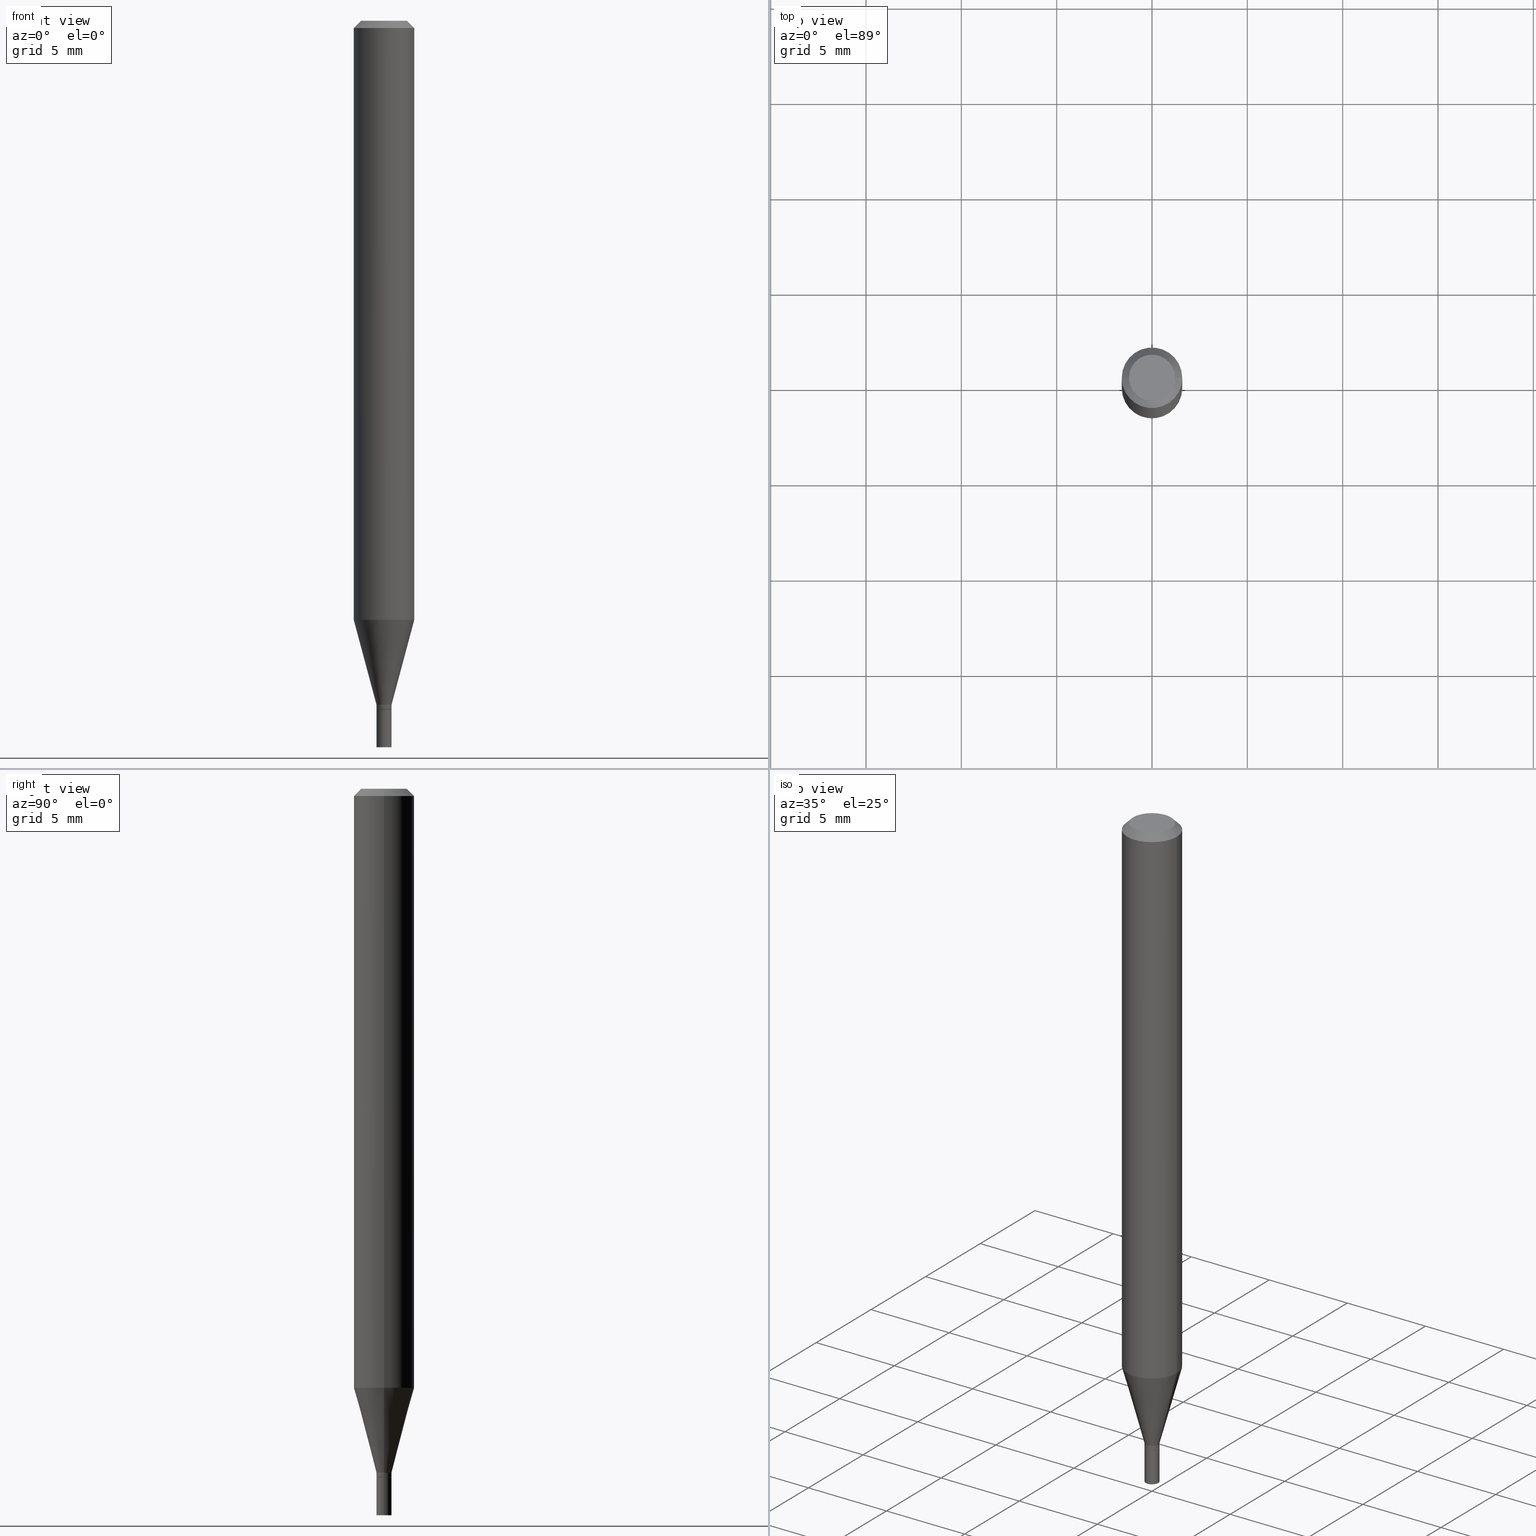
[diagram: canonical four-view strip — front | top / right | iso, engineering-drawing reading convention]
A machine part, canonical four-view strip (front | top / right | iso — engineering-drawing reading convention). The complete STEP part file that produces these views, byte-faithful:
ISO-10303-21;
HEADER;
FILE_DESCRIPTION (( 'STEP AP203' ),
    '1' );
FILE_NAME ('30503.STEP',
    '2024-03-13T16:12:55',
    ( '' ),
    ( '' ),
    'SwSTEP 2.0',
    'SolidWorks 2023',
    '' );
FILE_SCHEMA (( 'CONFIG_CONTROL_DESIGN' ));
ENDSEC;

DATA;
#1 = AXIS2_PLACEMENT_3D ( 'NONE', #374, #18, #332 ) ;
#2 = FACE_OUTER_BOUND ( 'NONE', #60, .T. ) ;
#3 = ORIENTED_EDGE ( 'NONE', *, *, #67, .T. ) ;
#4 = ADVANCED_FACE ( 'NONE', ( #202 ), #25, .T. ) ;
#5 = AXIS2_PLACEMENT_3D ( 'NONE', #333, #165, #416 ) ;
#6 = AXIS2_PLACEMENT_3D ( 'NONE', #185, #246, #406 ) ;
#7 = CARTESIAN_POINT ( 'NONE',  ( 0.01559999999999999928, -1.089342177719057547E-16, 7.606835770241659199E-31 ) ) ;
#8 = CC_DESIGN_PERSON_AND_ORGANIZATION_ASSIGNMENT ( #340, #381, ( #401 ) ) ;
#9 = ORIENTED_EDGE ( 'NONE', *, *, #210, .T. ) ;
#10 = DIRECTION ( 'NONE',  ( -0.7071067811865642261, 7.493145998870414114E-15, 0.7071067811865309194 ) ) ;
#11 = DIRECTION ( 'NONE',  ( 1.000000000000000000, -6.982962677686267499E-15, 0.000000000000000000 ) ) ;
#12 = CARTESIAN_POINT ( 'NONE',  ( 3.477456642395264859E-29, -4.964886463834953365E-15, -1.421999999999999931 ) ) ;
#13 = COORDINATED_UNIVERSAL_TIME_OFFSET ( 5, 0, .BEHIND. ) ;
#14 = CIRCLE ( 'NONE', #242, 0.01509999999999999884 ) ;
#15 = CARTESIAN_POINT ( 'NONE',  ( 3.668203209277705088E-31, -5.237222008264718399E-17, -0.01499999999999999944 ) ) ;
#16 = EDGE_CURVE ( 'NONE', #200, #220, #231, .T. ) ;
#17 = EDGE_LOOP ( 'NONE', ( #146, #59, #385, #160 ) ) ;
#18 = DIRECTION ( 'NONE',  ( -2.445468806185136597E-29, 3.491481338843145583E-15, 1.000000000000000000 ) ) ;
#19 = CARTESIAN_POINT ( 'NONE',  ( -0.06250000000000002776, -1.741520179571366031E-15, -0.01499999999999999944 ) ) ;
#20 = FACE_OUTER_BOUND ( 'NONE', #403, .T. ) ;
#21 = ORIENTED_EDGE ( 'NONE', *, *, #404, .F. ) ;
#22 = COORDINATED_UNIVERSAL_TIME_OFFSET ( 5, 0, .BEHIND. ) ;
#23 = FACE_OUTER_BOUND ( 'NONE', #206, .T. ) ;
#24 = DESIGN_CONTEXT ( 'detailed design', #444, 'design' ) ;
#25 = CONICAL_SURFACE ( 'NONE', #405, 0.01509999999999999884, 0.7853981633974718157 ) ;
#26 = VECTOR ( 'NONE', #10, 39.37007874015748143 ) ;
#27 = ADVANCED_BREP_SHAPE_REPRESENTATION ( '30503', ( #342, #32, #365 ), #43 ) ;
#28 = DIRECTION ( 'NONE',  ( -2.445468806185136597E-29, 3.491481338843145583E-15, 1.000000000000000000 ) ) ;
#29 = ORIENTED_EDGE ( 'NONE', *, *, #62, .T. ) ;
#30 = PERSON_AND_ORGANIZATION_ROLE ( 'creator' ) ;
#31 = FACE_OUTER_BOUND ( 'NONE', #199, .T. ) ;
#32 = MANIFOLD_SOLID_BREP ( 'Body-Move/Copy2[2]', #277 ) ;
#33 = APPLICATION_CONTEXT ( 'configuration controlled 3d designs of mechanical parts and assemblies' ) ;
#34 = CONICAL_SURFACE ( 'NONE', #398, 0.01559999999999992816, 0.2617993877991502405 ) ;
#35 = AXIS2_PLACEMENT_3D ( 'NONE', #306, #129, #51 ) ;
#36 = DIRECTION ( 'NONE',  ( 0.7071067811865642261, -2.468850131082431399E-15, 0.7071067811865309194 ) ) ;
#37 = AXIS2_PLACEMENT_3D ( 'NONE', #15, #159, #262 ) ;
#38 = DIRECTION ( 'NONE',  ( -1.000000000000000000, 6.982962677686265922E-15, -4.876176775795935793E-29 ) ) ;
#39 = EDGE_CURVE ( 'NONE', #263, #94, #58, .T. ) ;
#40 = LINE ( 'NONE', #7, #413 ) ;
#41 = ORIENTED_EDGE ( 'NONE', *, *, #196, .T. ) ;
#42 = DIRECTION ( 'NONE',  ( -0.2588190451025215166, 5.211531920934551042E-15, 0.9659258262890679791 ) ) ;
#43 =( GEOMETRIC_REPRESENTATION_CONTEXT ( 3 ) GLOBAL_UNCERTAINTY_ASSIGNED_CONTEXT ( ( #71 ) ) GLOBAL_UNIT_ASSIGNED_CONTEXT ( ( #425, #310, #187 ) ) REPRESENTATION_CONTEXT ( 'NONE', 'WORKASPACE' ) );
#44 = DIRECTION ( 'NONE',  ( 2.445468806185136597E-29, -3.491481338843145583E-15, -1.000000000000000000 ) ) ;
#45 = VERTEX_POINT ( 'NONE', #299 ) ;
#46 = APPROVAL_ROLE ( '' ) ;
#47 = CARTESIAN_POINT ( 'NONE',  ( 3.668203209277704895E-29, -5.237222008264718177E-15, -1.500000000000000222 ) ) ;
#48 = DATE_AND_TIME ( #257, #131 ) ;
#49 = CARTESIAN_POINT ( 'NONE',  ( 3.477456642395264859E-29, -4.964886463834953365E-15, -1.421999999999999931 ) ) ;
#50 = ORIENTED_EDGE ( 'NONE', *, *, #114, .T. ) ;
#51 = DIRECTION ( 'NONE',  ( 1.000000000000000000, -6.982962677686267499E-15, 4.852736867747366768E-29 ) ) ;
#52 = AXIS2_PLACEMENT_3D ( 'NONE', #135, #344, #228 ) ;
#53 = AXIS2_PLACEMENT_3D ( 'NONE', #161, #194, #341 ) ;
#54 = ORIENTED_EDGE ( 'NONE', *, *, #243, .T. ) ;
#55 = ADVANCED_FACE ( 'NONE', ( #125 ), #235, .T. ) ;
#56 = COORDINATED_UNIVERSAL_TIME_OFFSET ( 5, 0, .BEHIND. ) ;
#57 = FACE_OUTER_BOUND ( 'NONE', #17, .T. ) ;
#58 = LINE ( 'NONE', #267, #316 ) ;
#59 = ORIENTED_EDGE ( 'NONE', *, *, #16, .T. ) ;
#60 = EDGE_LOOP ( 'NONE', ( #375, #163, #251, #136 ) ) ;
#61 = VERTEX_POINT ( 'NONE', #88 ) ;
#62 = EDGE_CURVE ( 'NONE', #380, #218, #97, .T. ) ;
#63 = EDGE_CURVE ( 'NONE', #121, #94, #399, .T. ) ;
#64 = CC_DESIGN_APPROVAL ( #456, ( #302 ) ) ;
#65 = ORIENTED_EDGE ( 'NONE', *, *, #404, .T. ) ;
#66 = CARTESIAN_POINT ( 'NONE',  ( 0.01509999999999999884, -5.070329200268016125E-15, -1.421999999999999931 ) ) ;
#67 = EDGE_CURVE ( 'NONE', #203, #380, #450, .T. ) ;
#68 = CC_DESIGN_DATE_AND_TIME_ASSIGNMENT ( #255, #82, ( #302 ) ) ;
#69 = AXIS2_PLACEMENT_3D ( 'NONE', #423, #96, #377 ) ;
#70 = CARTESIAN_POINT ( 'NONE',  ( 3.476233907992172058E-29, -4.963140723165531861E-15, -1.421500000000000208 ) ) ;
#71 = UNCERTAINTY_MEASURE_WITH_UNIT (LENGTH_MEASURE( 1.000000000000000082E-05 ), #425, 'distance_accuracy_value', 'NONE');
#72 = ORIENTED_EDGE ( 'NONE', *, *, #276, .T. ) ;
#73 = CONICAL_SURFACE ( 'NONE', #337, 0.01509999999999999884, 0.7853981633974718157 ) ;
#74 = AXIS2_PLACEMENT_3D ( 'NONE', #412, #367, #38 ) ;
#75 = CARTESIAN_POINT ( 'NONE',  ( 0.06250000000000000000, -4.755281726115601490E-15, -1.236966817125020102 ) ) ;
#76 = CARTESIAN_POINT ( 'NONE',  ( 0.000000000000000000, 0.000000000000000000, 0.000000000000000000 ) ) ;
#77 = CARTESIAN_POINT ( 'NONE',  ( -0.01559999999999992816, -4.819126983667946462E-15, -1.412000000000000144 ) ) ;
#78 = ORIENTED_EDGE ( 'NONE', *, *, #435, .F. ) ;
#79 = CIRCLE ( 'NONE', #363, 0.06250000000000001388 ) ;
#80 = PRODUCT_DEFINITION_FORMATION_WITH_SPECIFIED_SOURCE ( 'ANY', '', #401, .NOT_KNOWN. ) ;
#81 = CARTESIAN_POINT ( 'NONE',  ( 3.477456642395264859E-29, -4.964886463834953365E-15, -1.421999999999999931 ) ) ;
#82 = DATE_TIME_ROLE ( 'creation_date' ) ;
#83 = CARTESIAN_POINT ( 'NONE',  ( 3.668203209277705088E-31, -5.237222008264718399E-17, -0.01499999999999999944 ) ) ;
#84 = DIRECTION ( 'NONE',  ( -2.445468806185136877E-29, 3.491481338843145188E-15, 1.000000000000000000 ) ) ;
#85 = ORIENTED_EDGE ( 'NONE', *, *, #147, .F. ) ;
#86 = DIRECTION ( 'NONE',  ( 1.000000000000000000, -6.982962677686252511E-15, 0.000000000000000000 ) ) ;
#87 = ADVANCED_FACE ( 'NONE', ( #128 ), #394, .T. ) ;
#88 = CARTESIAN_POINT ( 'NONE',  ( -0.01559999999999999928, -4.990209569271260911E-15, -1.500000000000000222 ) ) ;
#89 = ORIENTED_EDGE ( 'NONE', *, *, #177, .F. ) ;
#90 = PERSON_AND_ORGANIZATION_ROLE ( 'creator' ) ;
#91 = CARTESIAN_POINT ( 'NONE',  ( 0.01559999999999992816, -5.038905868218426694E-15, -1.412000000000000144 ) ) ;
#92 = PERSON_AND_ORGANIZATION_ROLE ( 'design_supplier' ) ;
#93 = AXIS2_PLACEMENT_3D ( 'NONE', #221, #158, #382 ) ;
#94 = VERTEX_POINT ( 'NONE', #19 ) ;
#95 = ORIENTED_EDGE ( 'NONE', *, *, #16, .F. ) ;
#96 = DIRECTION ( 'NONE',  ( -2.438088387897960049E-29, 3.491481338843145188E-15, 1.000000000000000000 ) ) ;
#97 = LINE ( 'NONE', #336, #184 ) ;
#98 = EDGE_LOOP ( 'NONE', ( #195, #65, #395, #89 ) ) ;
#99 = EDGE_CURVE ( 'NONE', #94, #121, #79, .T. ) ;
#100 = APPROVAL_DATE_TIME ( #124, #181 ) ;
#101 = CARTESIAN_POINT ( 'NONE',  ( -0.01559999999999999928, -4.990209569271260911E-15, -1.421999999999999931 ) ) ;
#102 = PERSON_AND_ORGANIZATION ( #449, #448 ) ;
#103 = CARTESIAN_POINT ( 'NONE',  ( -6.958212115706747638E-45, 9.934482783937485755E-31, 2.845348956448708805E-16 ) ) ;
#104 = AXIS2_PLACEMENT_3D ( 'NONE', #12, #256, #260 ) ;
#105 = ADVANCED_FACE ( 'NONE', ( #23 ), #233, .T. ) ;
#106 = CARTESIAN_POINT ( 'NONE',  ( 0.06250000000000001388, -4.888073874380389458E-16, -0.01499999999999999944 ) ) ;
#107 = DIRECTION ( 'NONE',  ( -2.445468806185136597E-29, 3.491481338843145583E-15, 1.000000000000000000 ) ) ;
#108 = CC_DESIGN_DATE_AND_TIME_ASSIGNMENT ( #48, #169, ( #442 ) ) ;
#109 = LOCAL_TIME ( 12, 12, 55.00000000000000000, #191 ) ;
#110 = CARTESIAN_POINT ( 'NONE',  ( 3.453001954333413314E-29, -4.929971650446521716E-15, -1.412000000000000144 ) ) ;
#111 = ORIENTED_EDGE ( 'NONE', *, *, #266, .T. ) ;
#112 = VECTOR ( 'NONE', #244, 39.37007874015748854 ) ;
#113 = CIRCLE ( 'NONE', #386, 0.01559999999999992816 ) ;
#114 = EDGE_CURVE ( 'NONE', #263, #218, #359, .T. ) ;
#115 = CARTESIAN_POINT ( 'NONE',  ( -0.01559999999999992816, -4.346942166289046833E-15, -1.412000000000000144 ) ) ;
#116 = CARTESIAN_POINT ( 'NONE',  ( 0.06250000000000001388, -4.811533449433680977E-16, -0.01499999999999999944 ) ) ;
#117 = VERTEX_POINT ( 'NONE', #427 ) ;
#118 = VECTOR ( 'NONE', #36, 39.37007874015748143 ) ;
#119 = APPROVAL_PERSON_ORGANIZATION ( #460, #181, #134 ) ;
#120 = VERTEX_POINT ( 'NONE', #101 ) ;
#121 = VERTEX_POINT ( 'NONE', #106 ) ;
#122 = MECHANICAL_CONTEXT ( 'NONE', #33, 'mechanical' ) ;
#123 = CYLINDRICAL_SURFACE ( 'NONE', #53, 0.01559999999999992643 ) ;
#124 = DATE_AND_TIME ( #426, #296 ) ;
#125 = FACE_OUTER_BOUND ( 'NONE', #338, .T. ) ;
#126 = ORIENTED_EDGE ( 'NONE', *, *, #350, .F. ) ;
#127 = CALENDAR_DATE ( 2024, 13, 3 ) ;
#128 = FACE_OUTER_BOUND ( 'NONE', #98, .T. ) ;
#129 = DIRECTION ( 'NONE',  ( -2.445468806185136597E-29, 3.491481338843145583E-15, 1.000000000000000000 ) ) ;
#130 = CIRCLE ( 'NONE', #142, 0.01559999999999992122 ) ;
#131 = LOCAL_TIME ( 12, 12, 55.00000000000000000, #22 ) ;
#132 = CARTESIAN_POINT ( 'NONE',  ( 0.01559999999999992643, -1.089342177719052370E-16, 7.606835770241623291E-31 ) ) ;
#133 = EDGE_LOOP ( 'NONE', ( #271, #111, #29, #183 ) ) ;
#134 = APPROVAL_ROLE ( '' ) ;
#135 = CARTESIAN_POINT ( 'NONE',  ( 0.000000000000000000, 0.000000000000000000, 0.000000000000000000 ) ) ;
#136 = ORIENTED_EDGE ( 'NONE', *, *, #196, .F. ) ;
#137 = CLOSED_SHELL ( 'NONE', ( #55, #348, #87, #279 ) ) ;
#138 = CARTESIAN_POINT ( 'NONE',  ( 3.316907271900976096E-16, 0.04749999999999999362, -2.357791577261395620E-17 ) ) ;
#139 = VECTOR ( 'NONE', #441, 39.37007874015748143 ) ;
#140 = CC_DESIGN_PERSON_AND_ORGANIZATION_ASSIGNMENT ( #102, #30, ( #80 ) ) ;
#141 = DIRECTION ( 'NONE',  ( -2.445468806185136597E-29, 3.491481338843145583E-15, 1.000000000000000000 ) ) ;
#142 = AXIS2_PLACEMENT_3D ( 'NONE', #70, #318, #284 ) ;
#143 = AXIS2_PLACEMENT_3D ( 'NONE', #145, #44, #288 ) ;
#144 = CARTESIAN_POINT ( 'NONE',  ( 3.668203209277704895E-29, -5.237222008264718177E-15, -1.500000000000000222 ) ) ;
#145 = CARTESIAN_POINT ( 'NONE',  ( 3.668203209277705088E-31, -5.237222008264718399E-17, -0.01499999999999999944 ) ) ;
#146 = ORIENTED_EDGE ( 'NONE', *, *, #389, .T. ) ;
#147 = EDGE_CURVE ( 'NONE', #200, #203, #130, .T. ) ;
#148 = AXIS2_PLACEMENT_3D ( 'NONE', #422, #312, #273 ) ;
#149 = ADVANCED_FACE ( 'NONE', ( #172 ), #73, .T. ) ;
#150 = APPROVAL_STATUS ( 'not_yet_approved' ) ;
#151 = CARTESIAN_POINT ( 'NONE',  ( 3.453001954333413314E-29, -4.929971650446521716E-15, -1.412000000000000144 ) ) ;
#152 = VERTEX_POINT ( 'NONE', #280 ) ;
#153 = COORDINATED_UNIVERSAL_TIME_OFFSET ( 5, 0, .BEHIND. ) ;
#154 = DIRECTION ( 'NONE',  ( -2.445468806185136597E-29, 3.491481338843145583E-15, 1.000000000000000000 ) ) ;
#155 = CC_DESIGN_PERSON_AND_ORGANIZATION_ASSIGNMENT ( #355, #92, ( #80 ) ) ;
#156 = VECTOR ( 'NONE', #239, 39.37007874015748854 ) ;
#157 = CC_DESIGN_APPROVAL ( #181, ( #442 ) ) ;
#158 = DIRECTION ( 'NONE',  ( -2.445468806185136597E-29, 3.491481338843145583E-15, 1.000000000000000000 ) ) ;
#159 = DIRECTION ( 'NONE',  ( -2.445468806185136597E-29, 3.491481338843145583E-15, 1.000000000000000000 ) ) ;
#160 = ORIENTED_EDGE ( 'NONE', *, *, #67, .F. ) ;
#161 = CARTESIAN_POINT ( 'NONE',  ( 0.000000000000000000, 0.000000000000000000, 0.000000000000000000 ) ) ;
#162 = CARTESIAN_POINT ( 'NONE',  ( 0.000000000000000000, 0.000000000000000000, 0.000000000000000000 ) ) ;
#163 = ORIENTED_EDGE ( 'NONE', *, *, #252, .T. ) ;
#164 = DIRECTION ( 'NONE',  ( 1.000000000000000000, -6.982962677686250144E-15, 0.000000000000000000 ) ) ;
#165 = DIRECTION ( 'NONE',  ( -2.445468806185136597E-29, 3.491481338843145583E-15, 1.000000000000000000 ) ) ;
#166 = ORIENTED_EDGE ( 'NONE', *, *, #350, .T. ) ;
#167 = LENGTH_MEASURE_WITH_UNIT ( LENGTH_MEASURE( 0.02539999999999999897 ), #349 );
#168 = AXIS2_PLACEMENT_3D ( 'NONE', #47, #198, #387 ) ;
#169 = DATE_TIME_ROLE ( 'classification_date' ) ;
#170 = DIRECTION ( 'NONE',  ( 1.000000000000000000, -6.982962677686265922E-15, 4.876176775795935232E-29 ) ) ;
#171 = ORIENTED_EDGE ( 'NONE', *, *, #276, .F. ) ;
#172 = FACE_OUTER_BOUND ( 'NONE', #347, .T. ) ;
#173 = CARTESIAN_POINT ( 'NONE',  ( 3.477456642395264859E-29, -4.964886463834953365E-15, -1.421999999999999931 ) ) ;
#174 = CIRCLE ( 'NONE', #440, 0.01559999999999992816 ) ;
#175 = PRODUCT_DEFINITION_SHAPE ( 'NONE', 'NONE',  #302 ) ;
#176 = EDGE_CURVE ( 'NONE', #180, #203, #429, .T. ) ;
#177 = EDGE_CURVE ( 'NONE', #120, #152, #237, .T. ) ;
#178 = ADVANCED_FACE ( 'NONE', ( #356 ), #34, .T. ) ;
#179 = DIRECTION ( 'NONE',  ( -2.445468806185136877E-29, 3.491481338843145188E-15, 1.000000000000000000 ) ) ;
#180 = VERTEX_POINT ( 'NONE', #434 ) ;
#181 = APPROVAL ( #230, 'UNSPECIFIED' ) ;
#182 = CARTESIAN_POINT ( 'NONE',  ( -0.06250000000000000000, -3.874757348910146415E-15, -1.236966817125020102 ) ) ;
#183 = ORIENTED_EDGE ( 'NONE', *, *, #114, .F. ) ;
#184 = VECTOR ( 'NONE', #307, 39.37007874015748143 ) ;
#185 = CARTESIAN_POINT ( 'NONE',  ( 3.024963765565350895E-29, -4.318846558760209820E-15, -1.236966817125020102 ) ) ;
#186 = EDGE_CURVE ( 'NONE', #259, #352, #384, .T. ) ;
#187 =( NAMED_UNIT ( * ) SI_UNIT ( $, .STERADIAN. ) SOLID_ANGLE_UNIT ( ) );
#188 = EDGE_LOOP ( 'NONE', ( #166, #438 ) ) ;
#189 = CALENDAR_DATE ( 2024, 13, 3 ) ;
#190 = ORIENTED_EDGE ( 'NONE', *, *, #147, .T. ) ;
#191 = COORDINATED_UNIVERSAL_TIME_OFFSET ( 5, 0, .BEHIND. ) ;
#192 = CIRCLE ( 'NONE', #464, 0.01559999999999999928 ) ;
#193 = LOCAL_TIME ( 12, 12, 55.00000000000000000, #56 ) ;
#194 = DIRECTION ( 'NONE',  ( -2.445468806185136597E-29, 3.491481338843145583E-15, 1.000000000000000000 ) ) ;
#195 = ORIENTED_EDGE ( 'NONE', *, *, #243, .F. ) ;
#196 = EDGE_CURVE ( 'NONE', #352, #94, #211, .T. ) ;
#197 = APPROVAL_DATE_TIME ( #334, #215 ) ;
#198 = DIRECTION ( 'NONE',  ( -2.445468806185136597E-29, 3.491481338843145583E-15, 1.000000000000000000 ) ) ;
#199 = EDGE_LOOP ( 'NONE', ( #454, #216 ) ) ;
#200 = VERTEX_POINT ( 'NONE', #207 ) ;
#201 = DIRECTION ( 'NONE',  ( 2.445468806185136597E-29, -3.491481338843145583E-15, -1.000000000000000000 ) ) ;
#202 = FACE_OUTER_BOUND ( 'NONE', #379, .T. ) ;
#203 = VERTEX_POINT ( 'NONE', #357 ) ;
#204 = CARTESIAN_POINT ( 'NONE',  ( 0.000000000000000000, 0.000000000000000000, 0.000000000000000000 ) ) ;
#205 = AXIS2_PLACEMENT_3D ( 'NONE', #83, #201, #459 ) ;
#206 = EDGE_LOOP ( 'NONE', ( #95, #190, #3, #301 ) ) ;
#207 = CARTESIAN_POINT ( 'NONE',  ( -0.01559999999999992122, -4.852296056386956607E-15, -1.421500000000000208 ) ) ;
#208 = AXIS2_PLACEMENT_3D ( 'NONE', #103, #240, #400 ) ;
#209 = ADVANCED_FACE ( 'NONE', ( #31 ), #314, .F. ) ;
#210 = EDGE_CURVE ( 'NONE', #220, #263, #443, .T. ) ;
#211 = LINE ( 'NONE', #360, #156 ) ;
#212 = CARTESIAN_POINT ( 'NONE',  ( 0.04749999999999999362, -4.035134999187574186E-16, 2.845348956448734443E-16 ) ) ;
#213 = VECTOR ( 'NONE', #42, 39.37007874015748143 ) ;
#214 = DIRECTION ( 'NONE',  ( 1.000000000000000000, -6.982962677686283277E-15, 0.000000000000000000 ) ) ;
#215 = APPROVAL ( #376, 'UNSPECIFIED' ) ;
#216 = ORIENTED_EDGE ( 'NONE', *, *, #186, .T. ) ;
#217 = DIRECTION ( 'NONE',  ( -2.445468806185136597E-29, 3.491481338843145583E-15, 1.000000000000000000 ) ) ;
#218 = VERTEX_POINT ( 'NONE', #75 ) ;
#219 = LINE ( 'NONE', #289, #139 ) ;
#220 = VERTEX_POINT ( 'NONE', #115 ) ;
#221 = CARTESIAN_POINT ( 'NONE',  ( 3.476233907992172058E-29, -4.963140723165531861E-15, -1.421500000000000208 ) ) ;
#222 = ORIENTED_EDGE ( 'NONE', *, *, #39, .F. ) ;
#223 = PERSON_AND_ORGANIZATION ( #449, #448 ) ;
#224 = FACE_OUTER_BOUND ( 'NONE', #417, .T. ) ;
#225 = DIRECTION ( 'NONE',  ( -2.445468806185136877E-29, 3.491481338843145188E-15, 1.000000000000000000 ) ) ;
#226 = ORIENTED_EDGE ( 'NONE', *, *, #311, .F. ) ;
#227 = FACE_OUTER_BOUND ( 'NONE', #287, .T. ) ;
#228 = DIRECTION ( 'NONE',  ( 1.000000000000000000, -6.982962677686266711E-15, 4.876176775795935793E-29 ) ) ;
#229 = CARTESIAN_POINT ( 'NONE',  ( 0.06250000000000001388, -4.364351673553917187E-16, 3.047610484872460221E-30 ) ) ;
#230 = APPROVAL_STATUS ( 'not_yet_approved' ) ;
#231 = LINE ( 'NONE', #346, #283 ) ;
#232 = LINE ( 'NONE', #390, #26 ) ;
#233 = CYLINDRICAL_SURFACE ( 'NONE', #353, 0.01559999999999992643 ) ;
#234 = ORIENTED_EDGE ( 'NONE', *, *, #361, .T. ) ;
#235 = CYLINDRICAL_SURFACE ( 'NONE', #5, 0.01559999999999999928 ) ;
#236 = ORIENTED_EDGE ( 'NONE', *, *, #358, .F. ) ;
#237 = CIRCLE ( 'NONE', #295, 0.01559999999999999928 ) ;
#238 = CIRCLE ( 'NONE', #104, 0.01559999999999999928 ) ;
#239 = DIRECTION ( 'NONE',  ( -0.7071067811865412445, 2.468850131082191585E-15, -0.7071067811865536790 ) ) ;
#240 = DIRECTION ( 'NONE',  ( -2.445468806185136597E-29, 3.491481338843145583E-15, 1.000000000000000000 ) ) ;
#241 = CIRCLE ( 'NONE', #6, 0.06250000000000000000 ) ;
#242 = AXIS2_PLACEMENT_3D ( 'NONE', #81, #362, #164 ) ;
#243 = EDGE_CURVE ( 'NONE', #61, #120, #219, .T. ) ;
#244 = DIRECTION ( 'NONE',  ( 0.7071067811865412445, -7.319954787623233957E-15, -0.7071067811865536790 ) ) ;
#245 = EDGE_LOOP ( 'NONE', ( #308, #275, #411, #236 ) ) ;
#246 = DIRECTION ( 'NONE',  ( -2.445468806185136597E-29, 3.491481338843145583E-15, 1.000000000000000000 ) ) ;
#247 = CIRCLE ( 'NONE', #35, 0.04749999999999999362 ) ;
#248 = DIRECTION ( 'NONE',  ( -2.445468806185136597E-29, 3.491481338843145583E-15, 1.000000000000000000 ) ) ;
#249 = DIMENSIONAL_EXPONENTS ( 1.000000000000000000, 0.000000000000000000, 0.000000000000000000, 0.000000000000000000, 0.000000000000000000, 0.000000000000000000, 0.000000000000000000 ) ;
#250 = EDGE_CURVE ( 'NONE', #45, #61, #192, .T. ) ;
#251 = ORIENTED_EDGE ( 'NONE', *, *, #63, .T. ) ;
#252 = EDGE_CURVE ( 'NONE', #259, #121, #370, .T. ) ;
#253 = DIRECTION ( 'NONE',  ( 0.000000000000000000, 0.000000000000000000, 1.000000000000000000 ) ) ;
#254 = LOCAL_TIME ( 12, 12, 55.00000000000000000, #153 ) ;
#255 = DATE_AND_TIME ( #446, #254 ) ;
#256 = DIRECTION ( 'NONE',  ( -2.445468806185136597E-29, 3.491481338843145583E-15, 1.000000000000000000 ) ) ;
#257 = CALENDAR_DATE ( 2024, 13, 3 ) ;
#258 = EDGE_LOOP ( 'NONE', ( #234, #9, #419, #391 ) ) ;
#259 = VERTEX_POINT ( 'NONE', #212 ) ;
#260 = DIRECTION ( 'NONE',  ( 1.000000000000000000, -6.982962677686283277E-15, 0.000000000000000000 ) ) ;
#261 = PERSON_AND_ORGANIZATION_ROLE ( 'classification_officer' ) ;
#262 = DIRECTION ( 'NONE',  ( 1.000000000000000000, -6.982962677686267499E-15, 0.000000000000000000 ) ) ;
#263 = VERTEX_POINT ( 'NONE', #182 ) ;
#264 = PERSON_AND_ORGANIZATION ( #449, #448 ) ;
#265 = LINE ( 'NONE', #229, #285 ) ;
#266 = EDGE_CURVE ( 'NONE', #220, #380, #174, .T. ) ;
#267 = CARTESIAN_POINT ( 'NONE',  ( -0.06250000000000001388, 4.440892098500627148E-16, -3.074334431409316814E-30 ) ) ;
#268 = CIRCLE ( 'NONE', #93, 0.01559999999999992122 ) ;
#269 = CARTESIAN_POINT ( 'NONE',  ( 3.453001954333413314E-29, -4.929971650446521716E-15, -1.412000000000000144 ) ) ;
#270 = CARTESIAN_POINT ( 'NONE',  ( 3.668203209277705088E-31, -5.237222008264718399E-17, -0.01499999999999999944 ) ) ;
#271 = ORIENTED_EDGE ( 'NONE', *, *, #210, .F. ) ;
#272 = CARTESIAN_POINT ( 'NONE',  ( -0.04749999999999999362, 3.578768372314216422E-16, 2.845348956448684646E-16 ) ) ;
#273 = DIRECTION ( 'NONE',  ( 1.000000000000000000, -6.982962677686262766E-15, 0.000000000000000000 ) ) ;
#274 = ADVANCED_FACE ( 'NONE', ( #410 ), #321, .T. ) ;
#275 = ORIENTED_EDGE ( 'NONE', *, *, #39, .T. ) ;
#276 = EDGE_CURVE ( 'NONE', #180, #117, #354, .T. ) ;
#277 = CLOSED_SHELL ( 'NONE', ( #409, #149, #290, #433, #315, #178, #274, #368, #209, #378, #4, #105 ) ) ;
#278 = DIRECTION ( 'NONE',  ( 2.438088387897960049E-29, -3.491481338843145188E-15, -1.000000000000000000 ) ) ;
#279 = ADVANCED_FACE ( 'NONE', ( #325 ), #330, .F. ) ;
#280 = CARTESIAN_POINT ( 'NONE',  ( 0.01559999999999999928, -5.073820681606859921E-15, -1.421999999999999931 ) ) ;
#281 = DIRECTION ( 'NONE',  ( 1.000000000000000000, -6.982962677686283277E-15, 0.000000000000000000 ) ) ;
#282 = CC_DESIGN_PERSON_AND_ORGANIZATION_ASSIGNMENT ( #373, #90, ( #302 ) ) ;
#283 = VECTOR ( 'NONE', #225, 39.37007874015748143 ) ;
#284 = DIRECTION ( 'NONE',  ( 1.000000000000000000, -6.982962677686255667E-15, 0.000000000000000000 ) ) ;
#285 = VECTOR ( 'NONE', #414, 39.37007874015748143 ) ;
#286 = DIRECTION ( 'NONE',  ( 1.000000000000000000, -6.982962677686265922E-15, 4.876176775795935232E-29 ) ) ;
#287 = EDGE_LOOP ( 'NONE', ( #326, #313, #41, #294 ) ) ;
#288 = DIRECTION ( 'NONE',  ( -1.000000000000000000, 6.982962677686267499E-15, 0.000000000000000000 ) ) ;
#289 = CARTESIAN_POINT ( 'NONE',  ( -0.01559999999999999928, 1.108446667785756239E-16, -7.673538740797652489E-31 ) ) ;
#290 = ADVANCED_FACE ( 'NONE', ( #2 ), #407, .T. ) ;
#291 = DATE_AND_TIME ( #127, #109 ) ;
#292 = DIRECTION ( 'NONE',  ( -2.445468806185136597E-29, 3.491481338843145583E-15, 1.000000000000000000 ) ) ;
#293 = ORIENTED_EDGE ( 'NONE', *, *, #250, .T. ) ;
#294 = ORIENTED_EDGE ( 'NONE', *, *, #99, .T. ) ;
#295 = AXIS2_PLACEMENT_3D ( 'NONE', #173, #141, #281 ) ;
#296 = LOCAL_TIME ( 12, 12, 55.00000000000000000, #13 ) ;
#297 = APPROVAL_ROLE ( '' ) ;
#298 = CYLINDRICAL_SURFACE ( 'NONE', #1, 0.06250000000000001388 ) ;
#299 = CARTESIAN_POINT ( 'NONE',  ( 0.01559999999999999928, -5.346156226036624733E-15, -1.500000000000000222 ) ) ;
#300 = EDGE_CURVE ( 'NONE', #218, #263, #241, .T. ) ;
#301 = ORIENTED_EDGE ( 'NONE', *, *, #266, .F. ) ;
#302 = PRODUCT_DEFINITION ( 'UNKNOWN', '', #80, #24 ) ;
#303 = PERSON_AND_ORGANIZATION ( #449, #448 ) ;
#304 = ORIENTED_EDGE ( 'NONE', *, *, #358, .T. ) ;
#305 = APPLICATION_PROTOCOL_DEFINITION ( 'international standard', 'config_control_design', 1994, #444 ) ;
#306 = CARTESIAN_POINT ( 'NONE',  ( -6.958212115706747638E-45, 9.934482783937485755E-31, 2.845348956448708805E-16 ) ) ;
#307 = DIRECTION ( 'NONE',  ( 0.2588190451025215166, 1.565188264969620784E-15, 0.9659258262890679791 ) ) ;
#308 = ORIENTED_EDGE ( 'NONE', *, *, #300, .T. ) ;
#309 = CIRCLE ( 'NONE', #168, 0.01559999999999999928 ) ;
#310 =( NAMED_UNIT ( * ) PLANE_ANGLE_UNIT ( ) SI_UNIT ( $, .RADIAN. ) );
#311 = EDGE_CURVE ( 'NONE', #45, #152, #40, .T. ) ;
#312 = DIRECTION ( 'NONE',  ( -2.445468806185136597E-29, 3.491481338843145583E-15, 1.000000000000000000 ) ) ;
#313 = ORIENTED_EDGE ( 'NONE', *, *, #324, .F. ) ;
#314 = PLANE ( 'NONE',  #430 ) ;
#315 = ADVANCED_FACE ( 'NONE', ( #327 ), #372, .T. ) ;
#316 = VECTOR ( 'NONE', #457, 39.37007874015748143 ) ;
#317 = AXIS2_PLACEMENT_3D ( 'NONE', #437, #217, #402 ) ;
#318 = DIRECTION ( 'NONE',  ( -2.445468806185136597E-29, 3.491481338843145583E-15, 1.000000000000000000 ) ) ;
#319 = CARTESIAN_POINT ( 'NONE',  ( 3.453001954333413314E-29, -4.929971650446521716E-15, -1.412000000000000144 ) ) ;
#320 = DIRECTION ( 'NONE',  ( -1.000000000000000000, 6.982962677686265922E-15, -4.876176775795935793E-29 ) ) ;
#321 = CYLINDRICAL_SURFACE ( 'NONE', #339, 0.06250000000000001388 ) ;
#322 = EDGE_CURVE ( 'NONE', #117, #180, #14, .T. ) ;
#323 = APPROVAL_PERSON_ORGANIZATION ( #223, #215, #46 ) ;
#324 = EDGE_CURVE ( 'NONE', #352, #259, #247, .T. ) ;
#325 = FACE_OUTER_BOUND ( 'NONE', #188, .T. ) ;
#326 = ORIENTED_EDGE ( 'NONE', *, *, #252, .F. ) ;
#327 = FACE_OUTER_BOUND ( 'NONE', #258, .T. ) ;
#328 = AXIS2_PLACEMENT_3D ( 'NONE', #421, #335, #418 ) ;
#329 = DIRECTION ( 'NONE',  ( 1.000000000000000000, 0.000000000000000000, 0.000000000000000000 ) ) ;
#330 = PLANE ( 'NONE',  #74 ) ;
#331 = ORIENTED_EDGE ( 'NONE', *, *, #322, .F. ) ;
#332 = DIRECTION ( 'NONE',  ( 1.000000000000000000, -6.982962677686265922E-15, 4.876176775795935232E-29 ) ) ;
#333 = CARTESIAN_POINT ( 'NONE',  ( 0.000000000000000000, 0.000000000000000000, 0.000000000000000000 ) ) ;
#334 = DATE_AND_TIME ( #189, #193 ) ;
#335 = DIRECTION ( 'NONE',  ( -2.438088387897960049E-29, 3.491481338843145188E-15, 1.000000000000000000 ) ) ;
#336 = CARTESIAN_POINT ( 'NONE',  ( 0.01559999999999992816, -5.038905868218426694E-15, -1.412000000000000144 ) ) ;
#337 = AXIS2_PLACEMENT_3D ( 'NONE', #397, #107, #466 ) ;
#338 = EDGE_LOOP ( 'NONE', ( #293, #54, #126, #226 ) ) ;
#339 = AXIS2_PLACEMENT_3D ( 'NONE', #76, #371, #286 ) ;
#340 = PERSON_AND_ORGANIZATION ( #449, #448 ) ;
#341 = DIRECTION ( 'NONE',  ( 1.000000000000000000, -6.982962677686265922E-15, 4.876176775795935232E-29 ) ) ;
#342 = MANIFOLD_SOLID_BREP ( 'Body-Move/Copy2[1]', #137 ) ;
#343 = SECURITY_CLASSIFICATION_LEVEL ( 'unclassified' ) ;
#344 = DIRECTION ( 'NONE',  ( -2.445468806185136597E-29, 3.491481338843145583E-15, 1.000000000000000000 ) ) ;
#345 = FACE_OUTER_BOUND ( 'NONE', #245, .T. ) ;
#346 = CARTESIAN_POINT ( 'NONE',  ( -0.01559999999999992643, 1.108446667785751062E-16, -7.673538740797616580E-31 ) ) ;
#347 = EDGE_LOOP ( 'NONE', ( #72, #428, #424, #366 ) ) ;
#348 = ADVANCED_FACE ( 'NONE', ( #20 ), #455, .F. ) ;
#349 =( LENGTH_UNIT ( ) NAMED_UNIT ( * ) SI_UNIT ( $, .METRE. ) );
#350 = EDGE_CURVE ( 'NONE', #152, #120, #238, .T. ) ;
#351 = DIRECTION ( 'NONE',  ( -2.445468806185136597E-29, 3.491481338843145583E-15, 1.000000000000000000 ) ) ;
#352 = VERTEX_POINT ( 'NONE', #272 ) ;
#353 = AXIS2_PLACEMENT_3D ( 'NONE', #162, #154, #170 ) ;
#354 = CIRCLE ( 'NONE', #317, 0.01509999999999999884 ) ;
#355 = PERSON_AND_ORGANIZATION ( #449, #448 ) ;
#356 = FACE_OUTER_BOUND ( 'NONE', #133, .T. ) ;
#357 = CARTESIAN_POINT ( 'NONE',  ( 0.01559999999999992122, -5.072074940937436839E-15, -1.421500000000000208 ) ) ;
#358 = EDGE_CURVE ( 'NONE', #218, #121, #265, .T. ) ;
#359 = CIRCLE ( 'NONE', #148, 0.06250000000000000000 ) ;
#360 = CARTESIAN_POINT ( 'NONE',  ( -0.06250000000000001388, 3.840629472727445902E-16, -0.01499999999999999944 ) ) ;
#361 = EDGE_CURVE ( 'NONE', #380, #220, #113, .T. ) ;
#362 = DIRECTION ( 'NONE',  ( -2.445468806185136597E-29, 3.491481338843145583E-15, 1.000000000000000000 ) ) ;
#363 = AXIS2_PLACEMENT_3D ( 'NONE', #270, #351, #11 ) ;
#364 = DIRECTION ( 'NONE',  ( -2.445468806185136597E-29, 3.491481338843145583E-15, 1.000000000000000000 ) ) ;
#365 = AXIS2_PLACEMENT_3D ( 'NONE', #204, #253, #329 ) ;
#366 = ORIENTED_EDGE ( 'NONE', *, *, #176, .F. ) ;
#367 = DIRECTION ( 'NONE',  ( 2.438088387897960049E-29, -3.491481338843145188E-15, -1.000000000000000000 ) ) ;
#368 = ADVANCED_FACE ( 'NONE', ( #227 ), #436, .T. ) ;
#369 = ORIENTED_EDGE ( 'NONE', *, *, #176, .T. ) ;
#370 = LINE ( 'NONE', #116, #112 ) ;
#371 = DIRECTION ( 'NONE',  ( -2.445468806185136597E-29, 3.491481338843145583E-15, 1.000000000000000000 ) ) ;
#372 = CONICAL_SURFACE ( 'NONE', #396, 0.01559999999999992816, 0.2617993877991502405 ) ;
#373 = PERSON_AND_ORGANIZATION ( #449, #448 ) ;
#374 = CARTESIAN_POINT ( 'NONE',  ( 0.000000000000000000, 0.000000000000000000, 0.000000000000000000 ) ) ;
#375 = ORIENTED_EDGE ( 'NONE', *, *, #186, .F. ) ;
#376 = APPROVAL_STATUS ( 'not_yet_approved' ) ;
#377 = DIRECTION ( 'NONE',  ( 1.000000000000000000, -6.982962677686265922E-15, 4.876176775795935793E-29 ) ) ;
#378 = ADVANCED_FACE ( 'NONE', ( #224 ), #453, .F. ) ;
#379 = EDGE_LOOP ( 'NONE', ( #78, #388, #369, #85 ) ) ;
#380 = VERTEX_POINT ( 'NONE', #91 ) ;
#381 = PERSON_AND_ORGANIZATION_ROLE ( 'design_owner' ) ;
#382 = DIRECTION ( 'NONE',  ( 1.000000000000000000, -6.982962677686255667E-15, 0.000000000000000000 ) ) ;
#383 = DIRECTION ( 'NONE',  ( 1.000000000000000000, -6.982962677686250144E-15, 0.000000000000000000 ) ) ;
#384 = CIRCLE ( 'NONE', #208, 0.04749999999999999362 ) ;
#385 = ORIENTED_EDGE ( 'NONE', *, *, #361, .F. ) ;
#386 = AXIS2_PLACEMENT_3D ( 'NONE', #269, #451, #86 ) ;
#387 = DIRECTION ( 'NONE',  ( 1.000000000000000000, -6.982962677686283277E-15, 0.000000000000000000 ) ) ;
#388 = ORIENTED_EDGE ( 'NONE', *, *, #322, .T. ) ;
#389 = EDGE_CURVE ( 'NONE', #203, #200, #268, .T. ) ;
#390 = CARTESIAN_POINT ( 'NONE',  ( -0.01509999999999999884, -4.857594510735178220E-15, -1.421999999999999931 ) ) ;
#391 = ORIENTED_EDGE ( 'NONE', *, *, #62, .F. ) ;
#392 = ORIENTED_EDGE ( 'NONE', *, *, #99, .F. ) ;
#393 = APPLICATION_PROTOCOL_DEFINITION ( 'international standard', 'config_control_design', 1994, #33 ) ;
#394 = CYLINDRICAL_SURFACE ( 'NONE', #52, 0.01559999999999999928 ) ;
#395 = ORIENTED_EDGE ( 'NONE', *, *, #311, .T. ) ;
#396 = AXIS2_PLACEMENT_3D ( 'NONE', #151, #292, #445 ) ;
#397 = CARTESIAN_POINT ( 'NONE',  ( 3.477456642395264859E-29, -4.964886463834953365E-15, -1.421999999999999931 ) ) ;
#398 = AXIS2_PLACEMENT_3D ( 'NONE', #319, #28, #463 ) ;
#399 = CIRCLE ( 'NONE', #37, 0.06250000000000001388 ) ;
#400 = DIRECTION ( 'NONE',  ( 1.000000000000000000, -6.982962677686267499E-15, 4.852736867747366768E-29 ) ) ;
#401 = PRODUCT ( '30503', '30503', '', ( #122 ) ) ;
#402 = DIRECTION ( 'NONE',  ( 1.000000000000000000, -6.982962677686250144E-15, 0.000000000000000000 ) ) ;
#403 = EDGE_LOOP ( 'NONE', ( #461, #21 ) ) ;
#404 = EDGE_CURVE ( 'NONE', #61, #45, #309, .T. ) ;
#405 = AXIS2_PLACEMENT_3D ( 'NONE', #49, #452, #383 ) ;
#406 = DIRECTION ( 'NONE',  ( 1.000000000000000000, -6.982962677686262766E-15, 0.000000000000000000 ) ) ;
#407 = CONICAL_SURFACE ( 'NONE', #143, 0.06250000000000001388, 0.7853981633974395082 ) ;
#408 = DIRECTION ( 'NONE',  ( 1.000000000000000000, -6.982962677686252511E-15, 0.000000000000000000 ) ) ;
#409 = ADVANCED_FACE ( 'NONE', ( #57 ), #123, .T. ) ;
#410 = FACE_OUTER_BOUND ( 'NONE', #462, .T. ) ;
#411 = ORIENTED_EDGE ( 'NONE', *, *, #63, .F. ) ;
#412 = CARTESIAN_POINT ( 'NONE',  ( 1.089342177719405139E-16, 0.01559999999999503451, -1.421999999999999931 ) ) ;
#413 = VECTOR ( 'NONE', #179, 39.37007874015748143 ) ;
#414 = DIRECTION ( 'NONE',  ( -2.445468806185136877E-29, 3.491481338843145188E-15, 1.000000000000000000 ) ) ;
#415 = SHAPE_DEFINITION_REPRESENTATION ( #175, #27 ) ;
#416 = DIRECTION ( 'NONE',  ( 1.000000000000000000, -6.982962677686266711E-15, 4.876176775795935793E-29 ) ) ;
#417 = EDGE_LOOP ( 'NONE', ( #171, #331 ) ) ;
#418 = DIRECTION ( 'NONE',  ( 1.000000000000000000, -6.982962677686265922E-15, 4.876176775795935793E-29 ) ) ;
#419 = ORIENTED_EDGE ( 'NONE', *, *, #300, .F. ) ;
#420 = APPROVAL_DATE_TIME ( #291, #456 ) ;
#421 = CARTESIAN_POINT ( 'NONE',  ( 3.576687321579069994E-29, -5.368277968210015545E-15, -1.500000000000000222 ) ) ;
#422 = CARTESIAN_POINT ( 'NONE',  ( 3.024963765565350895E-29, -4.318846558760209820E-15, -1.236966817125020102 ) ) ;
#423 = CARTESIAN_POINT ( 'NONE',  ( 3.477456642395264859E-29, -4.964886463834953365E-15, -1.421999999999999931 ) ) ;
#424 = ORIENTED_EDGE ( 'NONE', *, *, #389, .F. ) ;
#425 =( CONVERSION_BASED_UNIT ( 'INCH', #167 ) LENGTH_UNIT ( ) NAMED_UNIT ( #249 ) );
#426 = CALENDAR_DATE ( 2024, 13, 3 ) ;
#427 = CARTESIAN_POINT ( 'NONE',  ( -0.01509999999999999884, -4.854945283561067019E-15, -1.421999999999999931 ) ) ;
#428 = ORIENTED_EDGE ( 'NONE', *, *, #435, .T. ) ;
#429 = LINE ( 'NONE', #66, #118 ) ;
#430 = AXIS2_PLACEMENT_3D ( 'NONE', #138, #278, #320 ) ;
#431 = CC_DESIGN_SECURITY_CLASSIFICATION ( #442, ( #80 ) ) ;
#432 = PRODUCT_RELATED_PRODUCT_CATEGORY ( 'detail', '', ( #401 ) ) ;
#433 = ADVANCED_FACE ( 'NONE', ( #345 ), #298, .T. ) ;
#434 = CARTESIAN_POINT ( 'NONE',  ( 0.01509999999999999884, -5.070329200268016125E-15, -1.421999999999999931 ) ) ;
#435 = EDGE_CURVE ( 'NONE', #117, #200, #232, .T. ) ;
#436 = CONICAL_SURFACE ( 'NONE', #205, 0.06250000000000001388, 0.7853981633974395082 ) ;
#437 = CARTESIAN_POINT ( 'NONE',  ( 3.477456642395264859E-29, -4.964886463834953365E-15, -1.421999999999999931 ) ) ;
#438 = ORIENTED_EDGE ( 'NONE', *, *, #177, .T. ) ;
#439 = CC_DESIGN_PERSON_AND_ORGANIZATION_ASSIGNMENT ( #303, #261, ( #442 ) ) ;
#440 = AXIS2_PLACEMENT_3D ( 'NONE', #110, #364, #408 ) ;
#441 = DIRECTION ( 'NONE',  ( -2.445468806185136877E-29, 3.491481338843145188E-15, 1.000000000000000000 ) ) ;
#442 = SECURITY_CLASSIFICATION ( '', '', #343 ) ;
#443 = LINE ( 'NONE', #77, #213 ) ;
#444 = APPLICATION_CONTEXT ( 'configuration controlled 3d designs of mechanical parts and assemblies' ) ;
#445 = DIRECTION ( 'NONE',  ( 1.000000000000000000, -6.982962677686252511E-15, 0.000000000000000000 ) ) ;
#446 = CALENDAR_DATE ( 2024, 13, 3 ) ;
#447 = VECTOR ( 'NONE', #84, 39.37007874015748143 ) ;
#448 = ORGANIZATION ( 'UNSPECIFIED', 'UNSPECIFIED', '' ) ;
#449 = PERSON ( 'UNSPECIFIED', 'UNSPECIFIED', 'UNSPECIFIED', ('UNSPECIFIED'), ('UNSPECIFIED'), ('UNSPECIFIED') ) ;
#450 = LINE ( 'NONE', #132, #447 ) ;
#451 = DIRECTION ( 'NONE',  ( -2.445468806185136597E-29, 3.491481338843145583E-15, 1.000000000000000000 ) ) ;
#452 = DIRECTION ( 'NONE',  ( -2.445468806185136597E-29, 3.491481338843145583E-15, 1.000000000000000000 ) ) ;
#453 = PLANE ( 'NONE',  #69 ) ;
#454 = ORIENTED_EDGE ( 'NONE', *, *, #324, .T. ) ;
#455 = PLANE ( 'NONE',  #328 ) ;
#456 = APPROVAL ( #150, 'UNSPECIFIED' ) ;
#457 = DIRECTION ( 'NONE',  ( -2.445468806185136877E-29, 3.491481338843145188E-15, 1.000000000000000000 ) ) ;
#458 = APPROVAL_PERSON_ORGANIZATION ( #264, #456, #297 ) ;
#459 = DIRECTION ( 'NONE',  ( -1.000000000000000000, 6.982962677686267499E-15, 0.000000000000000000 ) ) ;
#460 = PERSON_AND_ORGANIZATION ( #449, #448 ) ;
#461 = ORIENTED_EDGE ( 'NONE', *, *, #250, .F. ) ;
#462 = EDGE_LOOP ( 'NONE', ( #222, #50, #304, #392 ) ) ;
#463 = DIRECTION ( 'NONE',  ( 1.000000000000000000, -6.982962677686252511E-15, 0.000000000000000000 ) ) ;
#464 = AXIS2_PLACEMENT_3D ( 'NONE', #144, #248, #214 ) ;
#465 = CC_DESIGN_APPROVAL ( #215, ( #80 ) ) ;
#466 = DIRECTION ( 'NONE',  ( 1.000000000000000000, -6.982962677686250144E-15, 0.000000000000000000 ) ) ;
ENDSEC;
END-ISO-10303-21;
